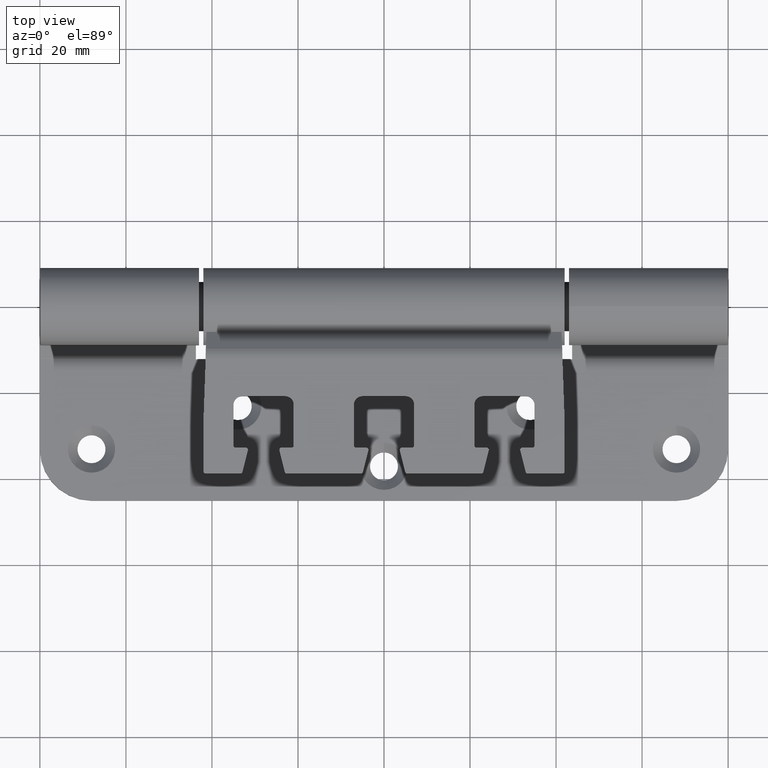
[diagram: clean part render]
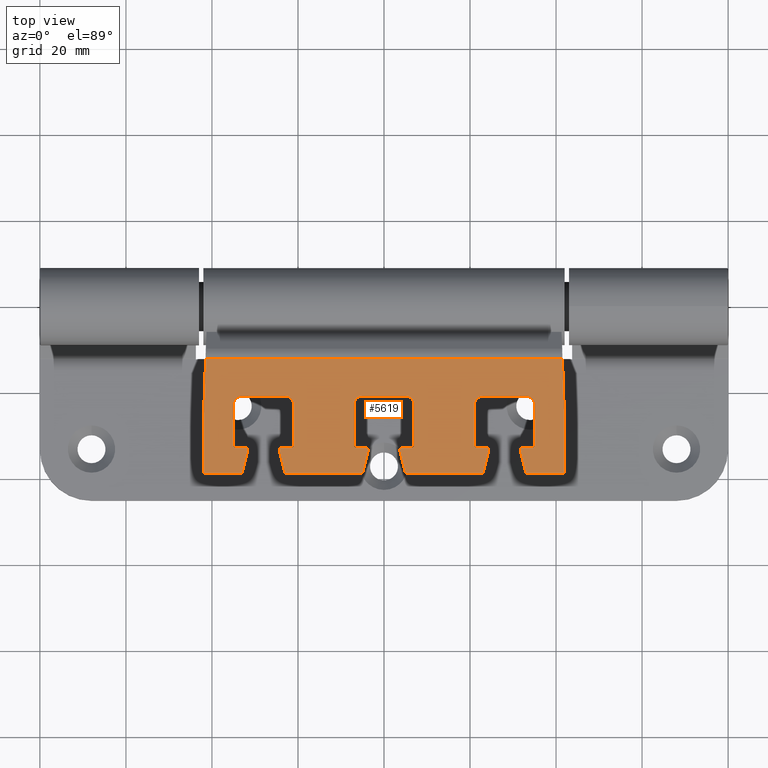
[diagram: same view with one face highlighted and labeled with its STEP entity id]
A machine part, top view. The second image highlights one B-rep face of the part: STEP entity #5619.
In plain terms, the highlighted planar face has unit normal (-0, 0, -1).
Its self-contained STEP definition (entity closure, byte-faithful):
#36 = DIRECTION ( 'NONE',  ( 0.0000000000000000000, 1.000000000000000000, 1.401298464324817400E-045 ) ) ;
#84 = DIRECTION ( 'NONE',  ( 0.0000000000000000000, -1.401298464324817100E-045, -1.000000000000000000 ) ) ;
#168 = EDGE_LOOP ( 'NONE', ( #534, #5034, #3580, #6763, #8089, #2420, #11489, #7219, #10508, #2522, #13681, #3920, #4295, #4228, #8159, #7524, #8075, #9200, #5109, #5340, #4127, #13906, #3393, #8997, #10125, #12261, #9189, #3024, #12358, #2378, #2650, #5775, #2998, #2481, #6459, #10651, #1791, #10622, #4514, #9398, #6820, #13341, #7708, #547, #5993, #11655, #952, #1134, #7852, #1866, #1202, #11851, #4978, #8685, #9476, #10159 ) ) ;
#193 = CARTESIAN_POINT ( 'NONE',  ( -32.99999999999999300, -11.00000000000000200, 42.00000000000000000 ) ) ;
#212 = AXIS2_PLACEMENT_3D ( 'NONE', #5329, #10773, #2050 ) ;
#243 = VERTEX_POINT ( 'NONE', #4088 ) ;
#375 = CIRCLE ( 'NONE', #9518, 0.5000000000000004400 ) ;
#421 = AXIS2_PLACEMENT_3D ( 'NONE', #827, #10830, #11850 ) ;
#483 = EDGE_CURVE ( 'NONE', #13393, #11951, #11595, .T. ) ;
#534 = ORIENTED_EDGE ( 'NONE', *, *, #3908, .T. ) ;
#535 = DIRECTION ( 'NONE',  ( 0.0000000000000000000, 1.000000000000000000, 1.401298464324817400E-045 ) ) ;
#547 = ORIENTED_EDGE ( 'NONE', *, *, #4883, .T. ) ;
#639 = LINE ( 'NONE', #6840, #5291 ) ;
#666 = VECTOR ( 'NONE', #13785, 999.9999999999998900 ) ;
#692 = VECTOR ( 'NONE', #6257, 1000.000000000000100 ) ;
#702 = DIRECTION ( 'NONE',  ( 0.0000000000000000000, -1.401298464324817100E-045, -1.000000000000000000 ) ) ;
#714 = CARTESIAN_POINT ( 'NONE',  ( -22.99999999999998900, -11.00000000000000200, -32.99999999999999300 ) ) ;
#743 = DIRECTION ( 'NONE',  ( 1.000000000000000000, 0.0000000000000000000, -6.938893903907232300E-016 ) ) ;
#763 = CARTESIAN_POINT ( 'NONE',  ( -33.49999999999999300, -10.99999999999999800, -23.85961179679777500 ) ) ;
#794 = LINE ( 'NONE', #9887, #5431 ) ;
#801 = CARTESIAN_POINT ( 'NONE',  ( -12.18030679136777500, -11.00000000000000000, -41.47866385739928300 ) ) ;
#811 = DIRECTION ( 'NONE',  ( -1.000000000000000000, 0.0000000000000000000, -6.938893903907228400E-016 ) ) ;
#824 = CIRCLE ( 'NONE', #4844, 1.999999999999994900 ) ;
#827 = CARTESIAN_POINT ( 'NONE',  ( -33.49999999999999300, -10.99999999999999800, 32.14038820320222800 ) ) ;
#830 = DIRECTION ( 'NONE',  ( 0.0000000000000000000, 0.0000000000000000000, 1.000000000000000000 ) ) ;
#930 = CARTESIAN_POINT ( 'NONE',  ( -33.00000000000000000, -11.00000000000000200, 70.00000000000000000 ) ) ;
#952 = ORIENTED_EDGE ( 'NONE', *, *, #1232, .T. ) ;
#1005 = VERTEX_POINT ( 'NONE', #10855 ) ;
#1029 = VERTEX_POINT ( 'NONE', #4546 ) ;
#1050 = CARTESIAN_POINT ( 'NONE',  ( -38.62126781251817000, -11.00000000000000200, -4.905316953129514000 ) ) ;
#1053 = DIRECTION ( 'NONE',  ( 0.0000000000000000000, 0.0000000000000000000, 1.000000000000000000 ) ) ;
#1074 = CARTESIAN_POINT ( 'NONE',  ( -39.00000000000000000, -11.00000000000000200, 42.00000000000000000 ) ) ;
#1109 = PLANE ( 'NONE',  #9395 ) ;
#1125 = VERTEX_POINT ( 'NONE', #2885 ) ;
#1134 = ORIENTED_EDGE ( 'NONE', *, *, #9816, .T. ) ;
#1179 = VERTEX_POINT ( 'NONE', #1923 ) ;
#1180 = EDGE_CURVE ( 'NONE', #3595, #2435, #3458, .T. ) ;
#1193 = DIRECTION ( 'NONE',  ( 0.0000000000000000000, 1.401298464324817100E-045, 1.000000000000000000 ) ) ;
#1202 = ORIENTED_EDGE ( 'NONE', *, *, #11981, .T. ) ;
#1232 = EDGE_CURVE ( 'NONE', #13382, #1005, #12769, .T. ) ;
#1298 = CARTESIAN_POINT ( 'NONE',  ( -20.99999999999998600, -10.99999999999999800, 5.000000000000016000 ) ) ;
#1368 = CIRCLE ( 'NONE', #1978, 0.5000000000000004400 ) ;
#1399 = VERTEX_POINT ( 'NONE', #7267 ) ;
#1464 = CARTESIAN_POINT ( 'NONE',  ( -32.99999999999999300, -11.00000000000000200, 4.140388203202228100 ) ) ;
#1540 = VERTEX_POINT ( 'NONE', #6418 ) ;
#1552 = CIRCLE ( 'NONE', #421, 0.5000000000000004400 ) ;
#1574 = CARTESIAN_POINT ( 'NONE',  ( -32.50000000000000000, -10.99999999999999800, -6.999999999999991100 ) ) ;
#1577 = AXIS2_PLACEMENT_3D ( 'NONE', #12747, #535, #6228 ) ;
#1579 = VERTEX_POINT ( 'NONE', #10337 ) ;
#1587 = DIRECTION ( 'NONE',  ( 0.0000000000000000000, 1.000000000000000000, 1.401298464324817400E-045 ) ) ;
#1609 = CIRCLE ( 'NONE', #4523, 0.5000000000000004400 ) ;
#1637 = VECTOR ( 'NONE', #11144, 1000.000000000000100 ) ;
#1640 = AXIS2_PLACEMENT_3D ( 'NONE', #9817, #36, #12105 ) ;
#1791 = ORIENTED_EDGE ( 'NONE', *, *, #2789, .T. ) ;
#1857 = VECTOR ( 'NONE', #4874, 999.9999999999998900 ) ;
#1866 = ORIENTED_EDGE ( 'NONE', *, *, #9149, .T. ) ;
#1923 = CARTESIAN_POINT ( 'NONE',  ( -22.99999999999998200, -11.00000000000000200, 35.00000000000000700 ) ) ;
#1978 = AXIS2_PLACEMENT_3D ( 'NONE', #8715, #12056, #8662 ) ;
#1991 = VERTEX_POINT ( 'NONE', #1050 ) ;
#2050 = DIRECTION ( 'NONE',  ( 0.0000000000000000000, 0.0000000000000000000, 1.000000000000000000 ) ) ;
#2059 = CARTESIAN_POINT ( 'NONE',  ( -39.00000000000000000, -11.00000000000000200, -5.390388203202159700 ) ) ;
#2090 = VERTEX_POINT ( 'NONE', #2313 ) ;
#2096 = LINE ( 'NONE', #1074, #11594 ) ;
#2198 = DIRECTION ( 'NONE',  ( 0.0000000000000000000, 1.000000000000000000, -1.401298464324817100E-045 ) ) ;
#2202 = VECTOR ( 'NONE', #10173, 1000.000000000000000 ) ;
#2219 = LINE ( 'NONE', #3066, #692 ) ;
#2268 = CARTESIAN_POINT ( 'NONE',  ( -38.50000000000000000, -11.00000000000000200, -5.390388203202173000 ) ) ;
#2274 = EDGE_CURVE ( 'NONE', #8365, #2670, #2219, .T. ) ;
#2289 = DIRECTION ( 'NONE',  ( 0.0000000000000000000, 1.401298464324817100E-045, 1.000000000000000000 ) ) ;
#2304 = CIRCLE ( 'NONE', #7078, 0.5000000000000004400 ) ;
#2313 = CARTESIAN_POINT ( 'NONE',  ( -38.50000000000000000, -11.00000000000000200, -42.00000000000000000 ) ) ;
#2377 = DIRECTION ( 'NONE',  ( 0.0000000000000000000, 0.0000000000000000000, 1.000000000000000000 ) ) ;
#2378 = ORIENTED_EDGE ( 'NONE', *, *, #10497, .T. ) ;
#2420 = ORIENTED_EDGE ( 'NONE', *, *, #9657, .T. ) ;
#2430 = CARTESIAN_POINT ( 'NONE',  ( -20.99999999999998900, -10.99999999999999800, 70.00000000000000000 ) ) ;
#2432 = EDGE_CURVE ( 'NONE', #5518, #1125, #5136, .T. ) ;
#2435 = VERTEX_POINT ( 'NONE', #12969 ) ;
#2481 = ORIENTED_EDGE ( 'NONE', *, *, #5182, .T. ) ;
#2505 = LINE ( 'NONE', #11246, #6123 ) ;
#2507 = CARTESIAN_POINT ( 'NONE',  ( -38.50000000000000000, -11.00000000000000200, 42.00000000000000000 ) ) ;
#2522 = ORIENTED_EDGE ( 'NONE', *, *, #8325, .T. ) ;
#2591 = CARTESIAN_POINT ( 'NONE',  ( -12.18030679136777500, -11.00000000000000000, 41.47866385739928300 ) ) ;
#2650 = ORIENTED_EDGE ( 'NONE', *, *, #4416, .T. ) ;
#2664 = VERTEX_POINT ( 'NONE', #7491 ) ;
#2670 = VERTEX_POINT ( 'NONE', #801 ) ;
#2691 = VERTEX_POINT ( 'NONE', #10705 ) ;
#2757 = EDGE_CURVE ( 'NONE', #7805, #1029, #375, .T. ) ;
#2776 = CIRCLE ( 'NONE', #8568, 0.5000000000000004400 ) ;
#2789 = EDGE_CURVE ( 'NONE', #8485, #1991, #7881, .T. ) ;
#2854 = VECTOR ( 'NONE', #10786, 1000.000000000000000 ) ;
#2869 = CARTESIAN_POINT ( 'NONE',  ( -39.00000000000000000, -11.00000000000000200, 33.39038820320222800 ) ) ;
#2885 = CARTESIAN_POINT ( 'NONE',  ( -38.62126781251816300, -11.00000000000000200, 32.90531695312954200 ) ) ;
#2888 = VERTEX_POINT ( 'NONE', #6508 ) ;
#2998 = ORIENTED_EDGE ( 'NONE', *, *, #3948, .T. ) ;
#3002 = VECTOR ( 'NONE', #9771, 1000.000000000000000 ) ;
#3013 = VERTEX_POINT ( 'NONE', #3722 ) ;
#3024 = ORIENTED_EDGE ( 'NONE', *, *, #4756, .T. ) ;
#3066 = CARTESIAN_POINT ( 'NONE',  ( -36.05574567586676000, -11.00000000000000200, -42.31241255519918100 ) ) ;
#3122 = CARTESIAN_POINT ( 'NONE',  ( -21.35294117647065400, -10.99999999999999800, 27.41176470588234100 ) ) ;
#3147 = VECTOR ( 'NONE', #12879, 1000.000000000000000 ) ;
#3191 = DIRECTION ( 'NONE',  ( 0.0000000000000000000, 0.0000000000000000000, 1.000000000000000000 ) ) ;
#3261 = LINE ( 'NONE', #13966, #8403 ) ;
#3316 = VERTEX_POINT ( 'NONE', #7441 ) ;
#3384 = CARTESIAN_POINT ( 'NONE',  ( -38.50000000000000000, -11.00000000000000200, 5.390388203202212100 ) ) ;
#3393 = ORIENTED_EDGE ( 'NONE', *, *, #11494, .T. ) ;
#3404 = AXIS2_PLACEMENT_3D ( 'NONE', #4509, #4554, #10072 ) ;
#3458 = LINE ( 'NONE', #7439, #10151 ) ;
#3501 = CARTESIAN_POINT ( 'NONE',  ( -22.99999999999998600, -11.00000000000000200, -6.999999999999987600 ) ) ;
#3511 = EDGE_CURVE ( 'NONE', #8595, #243, #12887, .T. ) ;
#3518 = CARTESIAN_POINT ( 'NONE',  ( -33.62126781251817000, -10.99999999999999800, 24.34468304687048200 ) ) ;
#3561 = CARTESIAN_POINT ( 'NONE',  ( -38.50000000000000000, -11.00000000000000200, 22.60961179679782200 ) ) ;
#3580 = ORIENTED_EDGE ( 'NONE', *, *, #7416, .F. ) ;
#3595 = VERTEX_POINT ( 'NONE', #4202 ) ;
#3645 = CARTESIAN_POINT ( 'NONE',  ( -20.99999999999998900, -10.99999999999999800, -22.99999999999998600 ) ) ;
#3660 = DIRECTION ( 'NONE',  ( 0.0000000000000000000, -1.401298464324817400E-045, -1.000000000000000000 ) ) ;
#3664 = CARTESIAN_POINT ( 'NONE',  ( -32.49999999999998600, -10.99999999999999800, 35.00000000000000700 ) ) ;
#3722 = CARTESIAN_POINT ( 'NONE',  ( -32.99999999999999300, -11.00000000000000200, 34.50000000000000000 ) ) ;
#3882 = DIRECTION ( 'NONE',  ( 0.0000000000000000000, 1.000000000000000000, 1.401298464324817400E-045 ) ) ;
#3908 = EDGE_CURVE ( 'NONE', #2090, #8365, #11828, .T. ) ;
#3920 = ORIENTED_EDGE ( 'NONE', *, *, #6112, .T. ) ;
#3925 = CIRCLE ( 'NONE', #4436, 1.999999999999994900 ) ;
#3927 = CIRCLE ( 'NONE', #9640, 0.5000000000000004400 ) ;
#3948 = EDGE_CURVE ( 'NONE', #6732, #9109, #794, .T. ) ;
#3967 = VERTEX_POINT ( 'NONE', #1298 ) ;
#3980 = CARTESIAN_POINT ( 'NONE',  ( -54.29411764705875500, -11.00000000000000200, 36.82352941176468200 ) ) ;
#4041 = EDGE_CURVE ( 'NONE', #6740, #12179, #2505, .T. ) ;
#4052 = CIRCLE ( 'NONE', #1577, 0.5000000000000004400 ) ;
#4064 = DIRECTION ( 'NONE',  ( -0.0000000000000000000, -1.000000000000000000, -1.401298464324817400E-045 ) ) ;
#4074 = LINE ( 'NONE', #8239, #7159 ) ;
#4081 = CARTESIAN_POINT ( 'NONE',  ( -32.99999999999999300, -11.00000000000000200, 42.00000000000000000 ) ) ;
#4082 = DIRECTION ( 'NONE',  ( 0.0000000000000000000, 0.0000000000000000000, 1.000000000000000000 ) ) ;
#4088 = CARTESIAN_POINT ( 'NONE',  ( -32.99999999999998600, -11.00000000000000200, 23.85961179679782500 ) ) ;
#4127 = ORIENTED_EDGE ( 'NONE', *, *, #12926, .T. ) ;
#4139 = CARTESIAN_POINT ( 'NONE',  ( -22.99999999999998200, -11.00000000000000200, 33.00000000000001400 ) ) ;
#4142 = CARTESIAN_POINT ( 'NONE',  ( -39.00000000000000000, -11.00000000000000200, 42.00000000000000000 ) ) ;
#4155 = DIRECTION ( 'NONE',  ( 0.0000000000000000000, -1.401298464324817400E-045, -1.000000000000000000 ) ) ;
#4198 = VERTEX_POINT ( 'NONE', #4917 ) ;
#4202 = CARTESIAN_POINT ( 'NONE',  ( -22.99999999999998200, -11.00000000000000200, 21.00000000000001100 ) ) ;
#4228 = ORIENTED_EDGE ( 'NONE', *, *, #7434, .T. ) ;
#4236 = CARTESIAN_POINT ( 'NONE',  ( -32.99999999999999300, -11.00000000000000200, -32.14038820320217800 ) ) ;
#4237 = CIRCLE ( 'NONE', #1640, 1.999999999999996700 ) ;
#4244 = CARTESIAN_POINT ( 'NONE',  ( -32.99999999999999300, -11.00000000000000200, -34.49999999999999300 ) ) ;
#4254 = LINE ( 'NONE', #11504, #5123 ) ;
#4295 = ORIENTED_EDGE ( 'NONE', *, *, #10314, .T. ) ;
#4308 = AXIS2_PLACEMENT_3D ( 'NONE', #9525, #12923, #830 ) ;
#4321 = CARTESIAN_POINT ( 'NONE',  ( -39.00000000000000000, -11.00000000000000200, 42.00000000000000000 ) ) ;
#4347 = CARTESIAN_POINT ( 'NONE',  ( -39.00000000000005000, -11.00000000000000200, -20.99999999999998200 ) ) ;
#4348 = CIRCLE ( 'NONE', #8837, 0.5000000000000004400 ) ;
#4416 = EDGE_CURVE ( 'NONE', #3967, #4846, #13545, .T. ) ;
#4436 = AXIS2_PLACEMENT_3D ( 'NONE', #4139, #8562, #4082 ) ;
#4454 = EDGE_CURVE ( 'NONE', #12941, #9594, #11634, .T. ) ;
#4505 = CARTESIAN_POINT ( 'NONE',  ( -38.50000000000000000, -11.00000000000000200, 41.50000000000000000 ) ) ;
#4509 = CARTESIAN_POINT ( 'NONE',  ( -33.49999999999999300, -10.99999999999999800, 4.140388203202228100 ) ) ;
#4514 = ORIENTED_EDGE ( 'NONE', *, *, #13192, .T. ) ;
#4523 = AXIS2_PLACEMENT_3D ( 'NONE', #5481, #7616, #5331 ) ;
#4528 = CIRCLE ( 'NONE', #11442, 1.999999999999996700 ) ;
#4546 = CARTESIAN_POINT ( 'NONE',  ( -38.62126781251817000, -11.00000000000000200, 4.905316953129546000 ) ) ;
#4554 = DIRECTION ( 'NONE',  ( -0.0000000000000000000, -1.000000000000000000, -1.401298464324817400E-045 ) ) ;
#4558 = VECTOR ( 'NONE', #1193, 1000.000000000000000 ) ;
#4633 = DIRECTION ( 'NONE',  ( 0.0000000000000000000, 0.0000000000000000000, 1.000000000000000000 ) ) ;
#4692 = VECTOR ( 'NONE', #5289, 999.9999999999998900 ) ;
#4718 = EDGE_CURVE ( 'NONE', #1540, #8158, #7809, .T. ) ;
#4756 = EDGE_CURVE ( 'NONE', #13830, #6740, #4904, .T. ) ;
#4763 = CARTESIAN_POINT ( 'NONE',  ( -38.62126781251816300, -11.00000000000000200, 23.09468304687048600 ) ) ;
#4794 = CARTESIAN_POINT ( 'NONE',  ( -38.50000000000000000, -11.00000000000000200, -33.39038820320219300 ) ) ;
#4844 = AXIS2_PLACEMENT_3D ( 'NONE', #714, #12697, #7128 ) ;
#4846 = VERTEX_POINT ( 'NONE', #10660 ) ;
#4873 = VERTEX_POINT ( 'NONE', #7447 ) ;
#4874 = DIRECTION ( 'NONE',  ( 0.9701425001453322100, 0.0000000000000000000, -0.2425356250363319400 ) ) ;
#4883 = EDGE_CURVE ( 'NONE', #2888, #12796, #2304, .T. ) ;
#4900 = DIRECTION ( 'NONE',  ( -0.9701425001453322100, 3.944304526105058600E-031, -0.2425356250363319400 ) ) ;
#4904 = CIRCLE ( 'NONE', #9760, 0.5000000000000004400 ) ;
#4917 = CARTESIAN_POINT ( 'NONE',  ( -22.99999999999998900, -11.00000000000000200, -34.99999999999999300 ) ) ;
#4978 = ORIENTED_EDGE ( 'NONE', *, *, #5461, .T. ) ;
#5004 = EDGE_CURVE ( 'NONE', #243, #14258, #8851, .T. ) ;
#5025 = CIRCLE ( 'NONE', #12100, 0.5000000000000004400 ) ;
#5034 = ORIENTED_EDGE ( 'NONE', *, *, #2274, .T. ) ;
#5104 = CARTESIAN_POINT ( 'NONE',  ( -39.00000000000000000, -11.00000000000000200, -41.49999999999997200 ) ) ;
#5109 = ORIENTED_EDGE ( 'NONE', *, *, #3511, .T. ) ;
#5123 = VECTOR ( 'NONE', #4900, 999.9999999999998900 ) ;
#5136 = CIRCLE ( 'NONE', #8387, 0.5000000000000004400 ) ;
#5182 = EDGE_CURVE ( 'NONE', #9109, #12941, #6255, .T. ) ;
#5197 = CARTESIAN_POINT ( 'NONE',  ( -32.50000000000000000, -10.99999999999999800, -20.99999999999998600 ) ) ;
#5289 = DIRECTION ( 'NONE',  ( 0.9701425001453322100, 0.0000000000000000000, -0.2425356250363319400 ) ) ;
#5291 = VECTOR ( 'NONE', #12529, 1000.000000000000000 ) ;
#5329 = CARTESIAN_POINT ( 'NONE',  ( -32.49999999999999300, -10.99999999999999800, -6.499999999999992000 ) ) ;
#5331 = DIRECTION ( 'NONE',  ( 0.0000000000000000000, 0.0000000000000000000, 1.000000000000000000 ) ) ;
#5340 = ORIENTED_EDGE ( 'NONE', *, *, #5004, .T. ) ;
#5431 = VECTOR ( 'NONE', #13254, 1000.000000000000000 ) ;
#5461 = EDGE_CURVE ( 'NONE', #4873, #3316, #4254, .T. ) ;
#5481 = CARTESIAN_POINT ( 'NONE',  ( -38.50000000000000000, -11.00000000000000200, -22.60961179679778600 ) ) ;
#5518 = VERTEX_POINT ( 'NONE', #2869 ) ;
#5585 = CARTESIAN_POINT ( 'NONE',  ( -22.99999999999998900, -11.00000000000000200, -22.99999999999998600 ) ) ;
#5590 = VECTOR ( 'NONE', #12256, 1000.000000000000000 ) ;
#5619 = ADVANCED_FACE ( 'NONE', ( #13253 ), #1109, .F. ) ;
#5677 = DIRECTION ( 'NONE',  ( -0.0000000000000000000, -1.000000000000000000, -1.401298464324817400E-045 ) ) ;
#5735 = VERTEX_POINT ( 'NONE', #8144 ) ;
#5763 = CARTESIAN_POINT ( 'NONE',  ( -38.62126781251816300, -11.00000000000000200, -23.09468304687045800 ) ) ;
#5775 = ORIENTED_EDGE ( 'NONE', *, *, #14248, .T. ) ;
#5781 = CARTESIAN_POINT ( 'NONE',  ( -12.18030679136777500, -11.00000000000000200, 42.00000000000000000 ) ) ;
#5993 = ORIENTED_EDGE ( 'NONE', *, *, #11627, .T. ) ;
#6100 = LINE ( 'NONE', #13188, #1637 ) ;
#6112 = EDGE_CURVE ( 'NONE', #3013, #13975, #4052, .T. ) ;
#6123 = VECTOR ( 'NONE', #12409, 1000.000000000000000 ) ;
#6169 = CARTESIAN_POINT ( 'NONE',  ( -39.00000000000003600, -11.00000000000000200, 35.00000000000001400 ) ) ;
#6175 = VECTOR ( 'NONE', #13289, 999.9999999999998900 ) ;
#6182 = DIRECTION ( 'NONE',  ( 0.0000000000000000000, -1.401298464324817400E-045, -1.000000000000000000 ) ) ;
#6228 = DIRECTION ( 'NONE',  ( 0.0000000000000000000, 0.0000000000000000000, 1.000000000000000000 ) ) ;
#6255 = CIRCLE ( 'NONE', #212, 0.5000000000000004400 ) ;
#6257 = DIRECTION ( 'NONE',  ( 0.9993908270190956500, -4.032839144608566100E-035, 0.03489949670250087200 ) ) ;
#6418 = CARTESIAN_POINT ( 'NONE',  ( -33.62126781251815500, -10.99999999999999800, 3.655316953129549100 ) ) ;
#6426 = CARTESIAN_POINT ( 'NONE',  ( -33.49999999999999300, -10.99999999999999800, -4.140388203202184600 ) ) ;
#6459 = ORIENTED_EDGE ( 'NONE', *, *, #4454, .T. ) ;
#6484 = VERTEX_POINT ( 'NONE', #4244 ) ;
#6485 = VECTOR ( 'NONE', #14171, 1000.000000000000000 ) ;
#6508 = CARTESIAN_POINT ( 'NONE',  ( -33.00000000000000000, -11.00000000000000200, -21.49999999999998600 ) ) ;
#6572 = DIRECTION ( 'NONE',  ( 0.0000000000000000000, 0.0000000000000000000, 1.000000000000000000 ) ) ;
#6691 = CARTESIAN_POINT ( 'NONE',  ( -38.50000000000000000, -11.00000000000000200, -41.50000000000000000 ) ) ;
#6715 = AXIS2_PLACEMENT_3D ( 'NONE', #6691, #12285, #7727 ) ;
#6732 = VERTEX_POINT ( 'NONE', #3501 ) ;
#6740 = VERTEX_POINT ( 'NONE', #8924 ) ;
#6752 = DIRECTION ( 'NONE',  ( 0.0000000000000000000, 1.000000000000000000, 1.401298464324817400E-045 ) ) ;
#6763 = ORIENTED_EDGE ( 'NONE', *, *, #11610, .T. ) ;
#6820 = ORIENTED_EDGE ( 'NONE', *, *, #483, .T. ) ;
#6840 = CARTESIAN_POINT ( 'NONE',  ( -32.99999999999999300, -11.00000000000000200, 98.00000000000000000 ) ) ;
#7055 = CARTESIAN_POINT ( 'NONE',  ( -22.99999999999998600, -11.00000000000000200, -4.999999999999992900 ) ) ;
#7078 = AXIS2_PLACEMENT_3D ( 'NONE', #14255, #8681, #1053 ) ;
#7128 = DIRECTION ( 'NONE',  ( 0.0000000000000000000, 0.0000000000000000000, 1.000000000000000000 ) ) ;
#7138 = CARTESIAN_POINT ( 'NONE',  ( -32.99999999999998600, -11.00000000000000200, 21.50000000000000400 ) ) ;
#7159 = VECTOR ( 'NONE', #6182, 1000.000000000000000 ) ;
#7172 = EDGE_CURVE ( 'NONE', #2664, #13382, #13885, .T. ) ;
#7197 = DIRECTION ( 'NONE',  ( -0.0000000000000000000, -1.000000000000000000, -1.401298464324817400E-045 ) ) ;
#7214 = VECTOR ( 'NONE', #84, 1000.000000000000000 ) ;
#7219 = ORIENTED_EDGE ( 'NONE', *, *, #2432, .T. ) ;
#7243 = VERTEX_POINT ( 'NONE', #12343 ) ;
#7267 = CARTESIAN_POINT ( 'NONE',  ( -20.99999999999998600, -10.99999999999999800, 23.00000000000000700 ) ) ;
#7269 = LINE ( 'NONE', #4321, #9871 ) ;
#7290 = VECTOR ( 'NONE', #4155, 1000.000000000000000 ) ;
#7325 = CARTESIAN_POINT ( 'NONE',  ( -32.49999999999998600, -10.99999999999999800, 21.50000000000000400 ) ) ;
#7338 = DIRECTION ( 'NONE',  ( 0.0000000000000000000, 0.0000000000000000000, 1.000000000000000000 ) ) ;
#7380 = EDGE_CURVE ( 'NONE', #2691, #3013, #639, .T. ) ;
#7416 = EDGE_CURVE ( 'NONE', #12299, #2670, #12988, .T. ) ;
#7427 = LINE ( 'NONE', #4142, #3147 ) ;
#7434 = EDGE_CURVE ( 'NONE', #1179, #5735, #3925, .T. ) ;
#7439 = CARTESIAN_POINT ( 'NONE',  ( -38.99999999999993600, -11.00000000000000200, 21.00000000000000400 ) ) ;
#7441 = CARTESIAN_POINT ( 'NONE',  ( -38.62126781251818400, -11.00000000000000200, -32.90531695312952100 ) ) ;
#7447 = CARTESIAN_POINT ( 'NONE',  ( -33.62126781251817000, -10.99999999999999800, -31.65531695312951400 ) ) ;
#7451 = LINE ( 'NONE', #193, #4558 ) ;
#7458 = CARTESIAN_POINT ( 'NONE',  ( -32.99999999999999300, -11.00000000000000200, -4.140388203202186400 ) ) ;
#7491 = CARTESIAN_POINT ( 'NONE',  ( -22.99999999999998900, -11.00000000000000200, -20.99999999999998900 ) ) ;
#7515 = DIRECTION ( 'NONE',  ( 1.000000000000000000, 0.0000000000000000000, 0.0000000000000000000 ) ) ;
#7524 = ORIENTED_EDGE ( 'NONE', *, *, #12000, .T. ) ;
#7578 = DIRECTION ( 'NONE',  ( 0.0000000000000000000, -1.401298464324817400E-045, -1.000000000000000000 ) ) ;
#7582 = EDGE_CURVE ( 'NONE', #11710, #13743, #9753, .T. ) ;
#7616 = DIRECTION ( 'NONE',  ( -0.0000000000000000000, -1.000000000000000000, -1.401298464324817400E-045 ) ) ;
#7643 = CARTESIAN_POINT ( 'NONE',  ( -32.99999999999999300, -11.00000000000000200, -23.85961179679777500 ) ) ;
#7654 = CARTESIAN_POINT ( 'NONE',  ( -39.00000000000000000, -11.00000000000000200, 22.60961179679782900 ) ) ;
#7679 = CARTESIAN_POINT ( 'NONE',  ( -32.99999999999999300, -11.00000000000000200, -6.499999999999992000 ) ) ;
#7708 = ORIENTED_EDGE ( 'NONE', *, *, #11580, .T. ) ;
#7727 = DIRECTION ( 'NONE',  ( 0.0000000000000000000, 0.0000000000000000000, 1.000000000000000000 ) ) ;
#7805 = VERTEX_POINT ( 'NONE', #13784 ) ;
#7808 = CARTESIAN_POINT ( 'NONE',  ( -32.50000000000000000, -10.99999999999999800, -34.99999999999999300 ) ) ;
#7809 = CIRCLE ( 'NONE', #3404, 0.5000000000000004400 ) ;
#7852 = ORIENTED_EDGE ( 'NONE', *, *, #8771, .T. ) ;
#7861 = VERTEX_POINT ( 'NONE', #7643 ) ;
#7881 = LINE ( 'NONE', #9782, #6175 ) ;
#7973 = AXIS2_PLACEMENT_3D ( 'NONE', #6426, #14102, #3191 ) ;
#7981 = VECTOR ( 'NONE', #702, 1000.000000000000000 ) ;
#8003 = DIRECTION ( 'NONE',  ( -0.0000000000000000000, -1.000000000000000000, -1.401298464324817400E-045 ) ) ;
#8043 = LINE ( 'NONE', #10121, #2202 ) ;
#8054 = EDGE_CURVE ( 'NONE', #1991, #12099, #13469, .T. ) ;
#8075 = ORIENTED_EDGE ( 'NONE', *, *, #1180, .T. ) ;
#8089 = ORIENTED_EDGE ( 'NONE', *, *, #12519, .F. ) ;
#8128 = LINE ( 'NONE', #3122, #9696 ) ;
#8144 = CARTESIAN_POINT ( 'NONE',  ( -20.99999999999998200, -10.99999999999999800, 33.00000000000001400 ) ) ;
#8153 = DIRECTION ( 'NONE',  ( 0.0000000000000000000, 0.0000000000000000000, 1.000000000000000000 ) ) ;
#8158 = VERTEX_POINT ( 'NONE', #1464 ) ;
#8159 = ORIENTED_EDGE ( 'NONE', *, *, #9015, .T. ) ;
#8239 = CARTESIAN_POINT ( 'NONE',  ( -39.00000000000000000, -11.00000000000000200, 42.00000000000000000 ) ) ;
#8325 = EDGE_CURVE ( 'NONE', #14109, #2691, #1552, .T. ) ;
#8365 = VERTEX_POINT ( 'NONE', #8839 ) ;
#8377 = AXIS2_PLACEMENT_3D ( 'NONE', #5585, #6752, #4633 ) ;
#8387 = AXIS2_PLACEMENT_3D ( 'NONE', #9664, #11036, #7338 ) ;
#8403 = VECTOR ( 'NONE', #811, 1000.000000000000000 ) ;
#8485 = VERTEX_POINT ( 'NONE', #10923 ) ;
#8500 = LINE ( 'NONE', #4347, #5590 ) ;
#8525 = CARTESIAN_POINT ( 'NONE',  ( -39.00000000000000000, -11.00000000000000200, 42.00000000000000000 ) ) ;
#8562 = DIRECTION ( 'NONE',  ( 0.0000000000000000000, 1.000000000000000000, 1.401298464324817400E-045 ) ) ;
#8568 = AXIS2_PLACEMENT_3D ( 'NONE', #763, #4064, #11780 ) ;
#8595 = VERTEX_POINT ( 'NONE', #7138 ) ;
#8612 = CARTESIAN_POINT ( 'NONE',  ( -22.99999999999998600, -11.00000000000000200, 7.000000000000010700 ) ) ;
#8662 = DIRECTION ( 'NONE',  ( 0.0000000000000000000, 0.0000000000000000000, 1.000000000000000000 ) ) ;
#8681 = DIRECTION ( 'NONE',  ( 0.0000000000000000000, 1.000000000000000000, 1.401298464324817400E-045 ) ) ;
#8685 = ORIENTED_EDGE ( 'NONE', *, *, #13376, .T. ) ;
#8715 = CARTESIAN_POINT ( 'NONE',  ( -32.49999999999999300, -10.99999999999999800, -34.49999999999999300 ) ) ;
#8771 = EDGE_CURVE ( 'NONE', #4198, #13351, #3261, .T. ) ;
#8798 = CARTESIAN_POINT ( 'NONE',  ( -39.00000000000000000, -11.00000000000000200, 42.00000000000000000 ) ) ;
#8808 = CARTESIAN_POINT ( 'NONE',  ( -39.00000000000000000, -11.00000000000000200, 41.50000000000000000 ) ) ;
#8811 = CARTESIAN_POINT ( 'NONE',  ( -20.99999999999998900, -10.99999999999999800, 42.00000000000000000 ) ) ;
#8837 = AXIS2_PLACEMENT_3D ( 'NONE', #11794, #9666, #10779 ) ;
#8839 = CARTESIAN_POINT ( 'NONE',  ( -27.10942061642034100, -11.00000000000000200, -42.00000000000000000 ) ) ;
#8842 = CIRCLE ( 'NONE', #4308, 1.999999999999994900 ) ;
#8851 = CIRCLE ( 'NONE', #13945, 0.5000000000000004400 ) ;
#8890 = DIRECTION ( 'NONE',  ( 0.0000000000000000000, 0.0000000000000000000, 1.000000000000000000 ) ) ;
#8924 = CARTESIAN_POINT ( 'NONE',  ( -32.49999999999999300, -10.99999999999999800, 7.000000000000012400 ) ) ;
#8956 = DIRECTION ( 'NONE',  ( -0.0000000000000000000, -1.000000000000000000, -1.401298464324817400E-045 ) ) ;
#8997 = ORIENTED_EDGE ( 'NONE', *, *, #2757, .T. ) ;
#9015 = EDGE_CURVE ( 'NONE', #5735, #1399, #8043, .T. ) ;
#9040 = EDGE_CURVE ( 'NONE', #1029, #1540, #11007, .T. ) ;
#9109 = VERTEX_POINT ( 'NONE', #1574 ) ;
#9149 = EDGE_CURVE ( 'NONE', #13351, #6484, #1368, .T. ) ;
#9189 = ORIENTED_EDGE ( 'NONE', *, *, #10392, .T. ) ;
#9200 = ORIENTED_EDGE ( 'NONE', *, *, #9482, .T. ) ;
#9304 = CARTESIAN_POINT ( 'NONE',  ( -54.29411764705876900, -11.00000000000000200, 8.823529411764676300 ) ) ;
#9332 = CARTESIAN_POINT ( 'NONE',  ( -33.62126781251815500, -10.99999999999999800, -24.34468304687045000 ) ) ;
#9354 = VERTEX_POINT ( 'NONE', #10437 ) ;
#9364 = LINE ( 'NONE', #8525, #7290 ) ;
#9370 = EDGE_CURVE ( 'NONE', #1125, #14109, #10109, .T. ) ;
#9395 = AXIS2_PLACEMENT_3D ( 'NONE', #8798, #2198, #2289 ) ;
#9398 = ORIENTED_EDGE ( 'NONE', *, *, #14158, .T. ) ;
#9449 = CARTESIAN_POINT ( 'NONE',  ( -32.50000000000000000, -10.99999999999999800, 6.500000000000011500 ) ) ;
#9476 = ORIENTED_EDGE ( 'NONE', *, *, #9840, .T. ) ;
#9482 = EDGE_CURVE ( 'NONE', #2435, #8595, #3927, .T. ) ;
#9518 = AXIS2_PLACEMENT_3D ( 'NONE', #3384, #9832, #6572 ) ;
#9525 = CARTESIAN_POINT ( 'NONE',  ( -22.99999999999998200, -11.00000000000000200, 23.00000000000000700 ) ) ;
#9594 = VERTEX_POINT ( 'NONE', #7458 ) ;
#9603 = DIRECTION ( 'NONE',  ( 0.0000000000000000000, 0.0000000000000000000, 1.000000000000000000 ) ) ;
#9629 = CARTESIAN_POINT ( 'NONE',  ( -54.29411764705876200, -11.00000000000000200, -19.17647058823532200 ) ) ;
#9640 = AXIS2_PLACEMENT_3D ( 'NONE', #7325, #14114, #9603 ) ;
#9657 = EDGE_CURVE ( 'NONE', #13889, #12883, #13770, .T. ) ;
#9664 = CARTESIAN_POINT ( 'NONE',  ( -38.50000000000000000, -11.00000000000000200, 33.39038820320222100 ) ) ;
#9666 = DIRECTION ( 'NONE',  ( -0.0000000000000000000, -1.000000000000000000, -1.401298464324817400E-045 ) ) ;
#9696 = VECTOR ( 'NONE', #13226, 999.9999999999998900 ) ;
#9753 = CIRCLE ( 'NONE', #11279, 0.5000000000000004400 ) ;
#9760 = AXIS2_PLACEMENT_3D ( 'NONE', #9449, #3882, #12754 ) ;
#9771 = DIRECTION ( 'NONE',  ( 0.0000000000000000000, 1.401298464324817100E-045, 1.000000000000000000 ) ) ;
#9782 = CARTESIAN_POINT ( 'NONE',  ( -21.35294117647066200, -10.99999999999999800, -0.5882352941176567400 ) ) ;
#9816 = EDGE_CURVE ( 'NONE', #1005, #4198, #824, .T. ) ;
#9817 = CARTESIAN_POINT ( 'NONE',  ( -22.99999999999998600, -11.00000000000000200, 5.000000000000016000 ) ) ;
#9818 = CARTESIAN_POINT ( 'NONE',  ( -33.00000000000000000, -11.00000000000000200, 70.00000000000000000 ) ) ;
#9832 = DIRECTION ( 'NONE',  ( -0.0000000000000000000, -1.000000000000000000, -1.401298464324817400E-045 ) ) ;
#9840 = EDGE_CURVE ( 'NONE', #9354, #10363, #4074, .T. ) ;
#9871 = VECTOR ( 'NONE', #7515, 1000.000000000000000 ) ;
#9887 = CARTESIAN_POINT ( 'NONE',  ( -38.99999999999995000, -11.00000000000000200, -6.999999999999995600 ) ) ;
#9964 = DIRECTION ( 'NONE',  ( 0.0000000000000000000, 0.0000000000000000000, 1.000000000000000000 ) ) ;
#10072 = DIRECTION ( 'NONE',  ( -1.387778780781444400E-014, 0.0000000000000000000, 1.000000000000000000 ) ) ;
#10109 = LINE ( 'NONE', #3980, #666 ) ;
#10121 = CARTESIAN_POINT ( 'NONE',  ( -20.99999999999998200, -10.99999999999999800, 98.00000000000000000 ) ) ;
#10125 = ORIENTED_EDGE ( 'NONE', *, *, #9040, .T. ) ;
#10151 = VECTOR ( 'NONE', #10741, 1000.000000000000000 ) ;
#10159 = ORIENTED_EDGE ( 'NONE', *, *, #12284, .T. ) ;
#10173 = DIRECTION ( 'NONE',  ( 0.0000000000000000000, -1.401298464324817100E-045, -1.000000000000000000 ) ) ;
#10314 = EDGE_CURVE ( 'NONE', #13975, #1179, #12025, .T. ) ;
#10337 = CARTESIAN_POINT ( 'NONE',  ( -27.10942061642033000, -11.00000000000000200, 42.00000000000000000 ) ) ;
#10341 = DIRECTION ( 'NONE',  ( 0.0000000000000000000, 0.0000000000000000000, 1.000000000000000000 ) ) ;
#10363 = VERTEX_POINT ( 'NONE', #5104 ) ;
#10392 = EDGE_CURVE ( 'NONE', #8158, #13830, #10613, .T. ) ;
#10437 = CARTESIAN_POINT ( 'NONE',  ( -39.00000000000000000, -11.00000000000000200, -33.39038820320216400 ) ) ;
#10453 = VERTEX_POINT ( 'NONE', #4236 ) ;
#10497 = EDGE_CURVE ( 'NONE', #12179, #3967, #4237, .T. ) ;
#10508 = ORIENTED_EDGE ( 'NONE', *, *, #9370, .T. ) ;
#10568 = VECTOR ( 'NONE', #11801, 1000.000000000000000 ) ;
#10613 = LINE ( 'NONE', #930, #2854 ) ;
#10622 = ORIENTED_EDGE ( 'NONE', *, *, #8054, .T. ) ;
#10651 = ORIENTED_EDGE ( 'NONE', *, *, #11490, .T. ) ;
#10660 = CARTESIAN_POINT ( 'NONE',  ( -20.99999999999998900, -10.99999999999999800, -4.999999999999992900 ) ) ;
#10705 = CARTESIAN_POINT ( 'NONE',  ( -32.99999999999999300, -11.00000000000000200, 32.14038820320222800 ) ) ;
#10741 = DIRECTION ( 'NONE',  ( -1.000000000000000000, 0.0000000000000000000, -6.938893903907228400E-016 ) ) ;
#10773 = DIRECTION ( 'NONE',  ( 0.0000000000000000000, 1.000000000000000000, 1.401298464324817400E-045 ) ) ;
#10779 = DIRECTION ( 'NONE',  ( 0.0000000000000000000, 0.0000000000000000000, 1.000000000000000000 ) ) ;
#10786 = DIRECTION ( 'NONE',  ( 0.0000000000000000000, 1.401298464324817100E-045, 1.000000000000000000 ) ) ;
#10830 = DIRECTION ( 'NONE',  ( -0.0000000000000000000, -1.000000000000000000, -1.401298464324817400E-045 ) ) ;
#10855 = CARTESIAN_POINT ( 'NONE',  ( -20.99999999999999300, -10.99999999999999800, -32.99999999999999300 ) ) ;
#10923 = CARTESIAN_POINT ( 'NONE',  ( -33.62126781251817700, -10.99999999999999800, -3.655316953129518400 ) ) ;
#11007 = LINE ( 'NONE', #9304, #1857 ) ;
#11036 = DIRECTION ( 'NONE',  ( -0.0000000000000000000, -1.000000000000000000, -1.401298464324817400E-045 ) ) ;
#11144 = DIRECTION ( 'NONE',  ( -0.9993908270190956500, 4.032839144598238600E-035, 0.03489949670250087200 ) ) ;
#11246 = CARTESIAN_POINT ( 'NONE',  ( -39.00000000000004300, -11.00000000000000200, 7.000000000000016900 ) ) ;
#11279 = AXIS2_PLACEMENT_3D ( 'NONE', #3561, #5677, #8890 ) ;
#11283 = CIRCLE ( 'NONE', #6715, 0.5000000000000004400 ) ;
#11300 = DIRECTION ( 'NONE',  ( -0.0000000000000000000, -1.000000000000000000, -1.401298464324817400E-045 ) ) ;
#11376 = CARTESIAN_POINT ( 'NONE',  ( -33.00000000000000000, -11.00000000000000200, 6.500000000000005300 ) ) ;
#11442 = AXIS2_PLACEMENT_3D ( 'NONE', #7055, #1587, #8153 ) ;
#11470 = CARTESIAN_POINT ( 'NONE',  ( -32.99999999999999300, -11.00000000000000200, 98.00000000000000000 ) ) ;
#11489 = ORIENTED_EDGE ( 'NONE', *, *, #12814, .T. ) ;
#11490 = EDGE_CURVE ( 'NONE', #9594, #8485, #12164, .T. ) ;
#11494 = EDGE_CURVE ( 'NONE', #13743, #7805, #9364, .T. ) ;
#11504 = CARTESIAN_POINT ( 'NONE',  ( -21.35294117647066200, -10.99999999999999800, -28.58823529411765900 ) ) ;
#11580 = EDGE_CURVE ( 'NONE', #7861, #2888, #7451, .T. ) ;
#11594 = VECTOR ( 'NONE', #7578, 1000.000000000000000 ) ;
#11595 = LINE ( 'NONE', #9629, #4692 ) ;
#11610 = EDGE_CURVE ( 'NONE', #12299, #1579, #6100, .T. ) ;
#11627 = EDGE_CURVE ( 'NONE', #12796, #2664, #8500, .T. ) ;
#11634 = LINE ( 'NONE', #9818, #3002 ) ;
#11655 = ORIENTED_EDGE ( 'NONE', *, *, #7172, .T. ) ;
#11710 = VERTEX_POINT ( 'NONE', #4763 ) ;
#11780 = DIRECTION ( 'NONE',  ( -1.387778780781444400E-014, 0.0000000000000000000, 1.000000000000000000 ) ) ;
#11794 = CARTESIAN_POINT ( 'NONE',  ( -33.49999999999999300, -10.99999999999999800, -32.14038820320218500 ) ) ;
#11801 = DIRECTION ( 'NONE',  ( 0.0000000000000000000, 1.401298464324817100E-045, 1.000000000000000000 ) ) ;
#11828 = LINE ( 'NONE', #13239, #12522 ) ;
#11850 = DIRECTION ( 'NONE',  ( -1.387778780781444400E-014, 0.0000000000000000000, 1.000000000000000000 ) ) ;
#11851 = ORIENTED_EDGE ( 'NONE', *, *, #14113, .T. ) ;
#11934 = AXIS2_PLACEMENT_3D ( 'NONE', #2268, #8956, #9964 ) ;
#11951 = VERTEX_POINT ( 'NONE', #9332 ) ;
#11981 = EDGE_CURVE ( 'NONE', #6484, #10453, #13361, .T. ) ;
#12000 = EDGE_CURVE ( 'NONE', #1399, #3595, #8842, .T. ) ;
#12025 = LINE ( 'NONE', #6169, #13912 ) ;
#12056 = DIRECTION ( 'NONE',  ( 0.0000000000000000000, 1.000000000000000000, 1.401298464324817400E-045 ) ) ;
#12099 = VERTEX_POINT ( 'NONE', #2059 ) ;
#12100 = AXIS2_PLACEMENT_3D ( 'NONE', #4794, #8003, #10341 ) ;
#12105 = DIRECTION ( 'NONE',  ( 0.0000000000000000000, 0.0000000000000000000, 1.000000000000000000 ) ) ;
#12162 = DIRECTION ( 'NONE',  ( 1.000000000000000000, 0.0000000000000000000, 0.0000000000000000000 ) ) ;
#12164 = CIRCLE ( 'NONE', #7973, 0.5000000000000004400 ) ;
#12179 = VERTEX_POINT ( 'NONE', #8612 ) ;
#12256 = DIRECTION ( 'NONE',  ( 1.000000000000000000, 0.0000000000000000000, -6.938893903907232300E-016 ) ) ;
#12261 = ORIENTED_EDGE ( 'NONE', *, *, #4718, .T. ) ;
#12284 = EDGE_CURVE ( 'NONE', #10363, #2090, #11283, .T. ) ;
#12285 = DIRECTION ( 'NONE',  ( -0.0000000000000000000, -1.000000000000000000, -1.401298464324817400E-045 ) ) ;
#12299 = VERTEX_POINT ( 'NONE', #2591 ) ;
#12343 = CARTESIAN_POINT ( 'NONE',  ( -39.00000000000000000, -11.00000000000000200, -22.60961179679776100 ) ) ;
#12358 = ORIENTED_EDGE ( 'NONE', *, *, #4041, .T. ) ;
#12409 = DIRECTION ( 'NONE',  ( 1.000000000000000000, 0.0000000000000000000, -6.938893903907232300E-016 ) ) ;
#12428 = AXIS2_PLACEMENT_3D ( 'NONE', #4505, #11300, #2377 ) ;
#12519 = EDGE_CURVE ( 'NONE', #13889, #1579, #7269, .T. ) ;
#12522 = VECTOR ( 'NONE', #12162, 1000.000000000000000 ) ;
#12529 = DIRECTION ( 'NONE',  ( 0.0000000000000000000, 1.401298464324817100E-045, 1.000000000000000000 ) ) ;
#12697 = DIRECTION ( 'NONE',  ( 0.0000000000000000000, 1.000000000000000000, 1.401298464324817400E-045 ) ) ;
#12721 = CARTESIAN_POINT ( 'NONE',  ( -33.49999999999998600, -10.99999999999999800, 23.85961179679781800 ) ) ;
#12747 = CARTESIAN_POINT ( 'NONE',  ( -32.49999999999999300, -10.99999999999999800, 34.50000000000000700 ) ) ;
#12754 = DIRECTION ( 'NONE',  ( 0.0000000000000000000, 0.0000000000000000000, 1.000000000000000000 ) ) ;
#12769 = LINE ( 'NONE', #8811, #7214 ) ;
#12796 = VERTEX_POINT ( 'NONE', #5197 ) ;
#12814 = EDGE_CURVE ( 'NONE', #12883, #5518, #7427, .T. ) ;
#12879 = DIRECTION ( 'NONE',  ( 0.0000000000000000000, -1.401298464324817400E-045, -1.000000000000000000 ) ) ;
#12883 = VERTEX_POINT ( 'NONE', #8808 ) ;
#12887 = LINE ( 'NONE', #11470, #6485 ) ;
#12923 = DIRECTION ( 'NONE',  ( 0.0000000000000000000, 1.000000000000000000, 1.401298464324817400E-045 ) ) ;
#12926 = EDGE_CURVE ( 'NONE', #14258, #11710, #8128, .T. ) ;
#12941 = VERTEX_POINT ( 'NONE', #7679 ) ;
#12969 = CARTESIAN_POINT ( 'NONE',  ( -32.49999999999998600, -10.99999999999999800, 21.00000000000000700 ) ) ;
#12988 = LINE ( 'NONE', #5781, #13745 ) ;
#13188 = CARTESIAN_POINT ( 'NONE',  ( -38.98551757312001300, -11.00000000000000200, 42.41472244428656100 ) ) ;
#13192 = EDGE_CURVE ( 'NONE', #12099, #7243, #2096, .T. ) ;
#13226 = DIRECTION ( 'NONE',  ( -0.9701425001453322100, 3.944304526105058600E-031, -0.2425356250363319400 ) ) ;
#13239 = CARTESIAN_POINT ( 'NONE',  ( -39.00000000000000000, -11.00000000000000200, -42.00000000000000000 ) ) ;
#13253 = FACE_OUTER_BOUND ( 'NONE', #168, .T. ) ;
#13254 = DIRECTION ( 'NONE',  ( -1.000000000000000000, 0.0000000000000000000, -6.938893903907228400E-016 ) ) ;
#13289 = DIRECTION ( 'NONE',  ( -0.9701425001453322100, 3.944304526105058600E-031, -0.2425356250363319400 ) ) ;
#13341 = ORIENTED_EDGE ( 'NONE', *, *, #13672, .T. ) ;
#13351 = VERTEX_POINT ( 'NONE', #7808 ) ;
#13361 = LINE ( 'NONE', #4081, #10568 ) ;
#13376 = EDGE_CURVE ( 'NONE', #3316, #9354, #5025, .T. ) ;
#13382 = VERTEX_POINT ( 'NONE', #3645 ) ;
#13393 = VERTEX_POINT ( 'NONE', #5763 ) ;
#13469 = CIRCLE ( 'NONE', #11934, 0.5000000000000004400 ) ;
#13545 = LINE ( 'NONE', #2430, #7981 ) ;
#13672 = EDGE_CURVE ( 'NONE', #11951, #7861, #2776, .T. ) ;
#13681 = ORIENTED_EDGE ( 'NONE', *, *, #7380, .T. ) ;
#13743 = VERTEX_POINT ( 'NONE', #7654 ) ;
#13745 = VECTOR ( 'NONE', #3660, 1000.000000000000000 ) ;
#13770 = CIRCLE ( 'NONE', #12428, 0.5000000000000004400 ) ;
#13784 = CARTESIAN_POINT ( 'NONE',  ( -39.00000000000000000, -11.00000000000000200, 5.390388203202229000 ) ) ;
#13785 = DIRECTION ( 'NONE',  ( 0.9701425001453322100, 0.0000000000000000000, -0.2425356250363319400 ) ) ;
#13830 = VERTEX_POINT ( 'NONE', #11376 ) ;
#13885 = CIRCLE ( 'NONE', #8377, 1.999999999999994900 ) ;
#13889 = VERTEX_POINT ( 'NONE', #2507 ) ;
#13906 = ORIENTED_EDGE ( 'NONE', *, *, #7582, .T. ) ;
#13912 = VECTOR ( 'NONE', #743, 1000.000000000000000 ) ;
#13945 = AXIS2_PLACEMENT_3D ( 'NONE', #12721, #7197, #13977 ) ;
#13966 = CARTESIAN_POINT ( 'NONE',  ( -38.99999999999994300, -11.00000000000000200, -34.99999999999999300 ) ) ;
#13975 = VERTEX_POINT ( 'NONE', #3664 ) ;
#13977 = DIRECTION ( 'NONE',  ( 0.0000000000000000000, 0.0000000000000000000, 1.000000000000000000 ) ) ;
#14028 = CARTESIAN_POINT ( 'NONE',  ( -33.62126781251814800, -10.99999999999999800, 31.65531695312955000 ) ) ;
#14102 = DIRECTION ( 'NONE',  ( -0.0000000000000000000, -1.000000000000000000, -1.401298464324817400E-045 ) ) ;
#14109 = VERTEX_POINT ( 'NONE', #14028 ) ;
#14113 = EDGE_CURVE ( 'NONE', #10453, #4873, #4348, .T. ) ;
#14114 = DIRECTION ( 'NONE',  ( 0.0000000000000000000, 1.000000000000000000, 1.401298464324817400E-045 ) ) ;
#14158 = EDGE_CURVE ( 'NONE', #7243, #13393, #1609, .T. ) ;
#14171 = DIRECTION ( 'NONE',  ( 0.0000000000000000000, 1.401298464324817100E-045, 1.000000000000000000 ) ) ;
#14248 = EDGE_CURVE ( 'NONE', #4846, #6732, #4528, .T. ) ;
#14255 = CARTESIAN_POINT ( 'NONE',  ( -32.50000000000000000, -10.99999999999999800, -21.49999999999998900 ) ) ;
#14258 = VERTEX_POINT ( 'NONE', #3518 ) ;